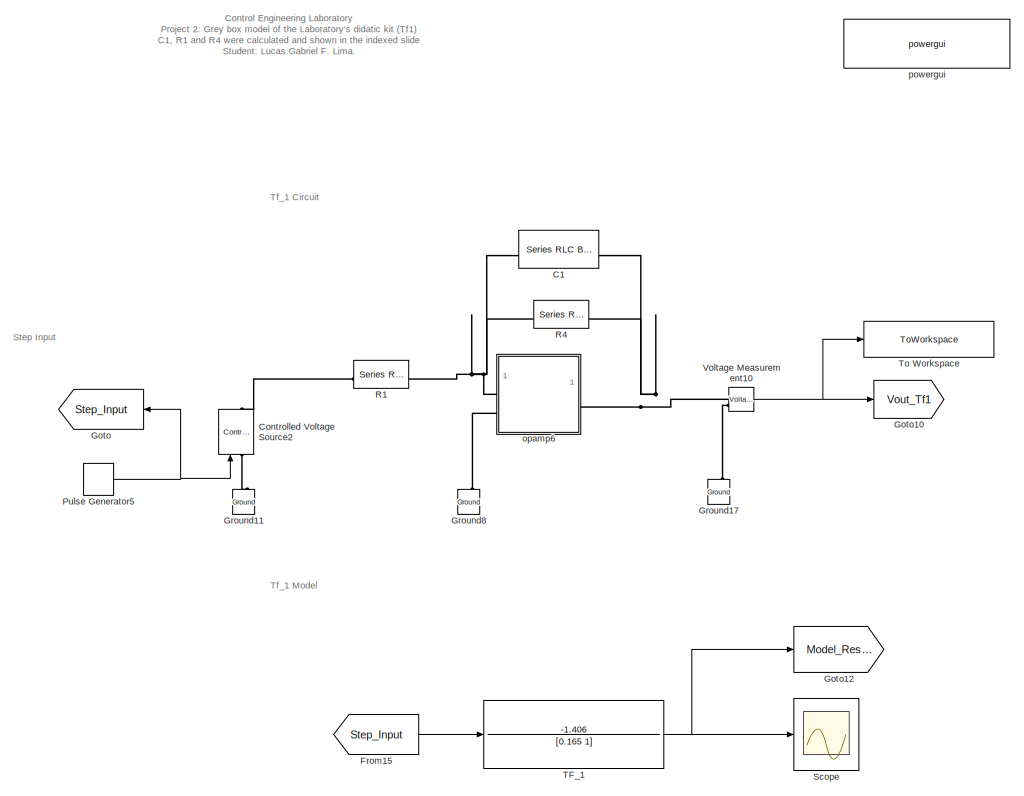
[diagram: root canvas - part 1/2, left side, full height]
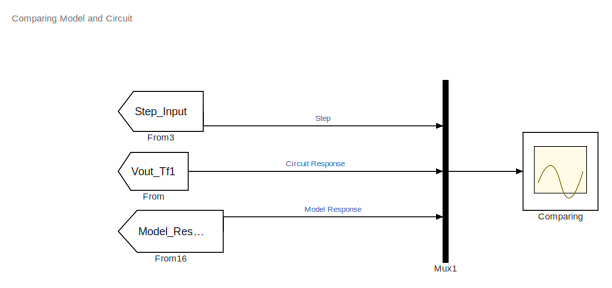
[diagram: root canvas - part 2/2, middle right region]
MODEL slx_54eb95ef9f8f
KIND model
CONFIG AbsTol = auto
CONFIG EnableMultiTasking = off
CONFIG FixedStep = auto
CONFIG MaxStep = auto
CONFIG MinStep = auto
CONFIG RelTol = 1e-3
CONFIG SampleTimeConstraint = Unconstrained
CONFIG SolverName = VariableStepAuto
CONFIG StartTime = 0.0
CONFIG StopTime = 1.5
BLOCK [Reference] C1  REF=spsSeriesRLCBranchLib/Series RLC Branch
  LibrarySourceBlock = sps_lib/Passives/Series RLC Branch
  SourceBlock = spsSeriesRLCBranchLib/Series RLC Branch
  SourceType = Series RLC Branch
BLOCK [Scope] Comparing
  Floating = off
  NumInputPorts = 1
  ScopeSpecificationString = Simulink.scopes.TimeScopeBlockCfg('CurrentConfiguration', extmgr.ConfigurationSet(extmgr.Configuration('Core','General UI',true),extmgr.Configuration('Core','Source UI',true),extmgr.Configuration('Sources','WiredSimulink',true,'DataLoggingVariableName','ScopeData1'),extmgr.Configuration('Visuals','Time Domain',true,'SerializedDisplays',{struct('MinYLimReal','-1.70657','MaxYLimReal','1.30073','YLab...<+1875ch>
BLOCK [Reference] Controlled Voltage Source2  REF=spsControlledVoltageSourceLib/Controlled Voltage Source
  LibrarySourceBlock = sps_lib/Sources/Controlled Voltage Source
  SourceBlock = spsControlledVoltageSourceLib/Controlled Voltage Source
  SourceType = Controlled Voltage Source
BLOCK [From] From
  GotoTag = Vout_Tf1
BLOCK [From] From15
  GotoTag = Step_Input
BLOCK [From] From16
  GotoTag = Model_Response
BLOCK [From] From3
  GotoTag = Step_Input
BLOCK [Goto] Goto
  GotoTag = Step_Input
  NameLocation = top
BLOCK [Goto] Goto10
  GotoTag = Vout_Tf1
BLOCK [Goto] Goto12
  GotoTag = Model_Response
BLOCK [Reference] Ground11  REF=spsGroundLib/Ground
  LibrarySourceBlock = sps_lib/Utilities/Ground
  NameLocation = right
  SourceBlock = spsGroundLib/Ground
  SourceType = Ground
BLOCK [Reference] Ground17  REF=spsGroundLib/Ground
  LibrarySourceBlock = sps_lib/Utilities/Ground
  NameLocation = right
  SourceBlock = spsGroundLib/Ground
  SourceType = Ground
BLOCK [Reference] Ground8  REF=spsGroundLib/Ground
  LibrarySourceBlock = sps_lib/Utilities/Ground
  NameLocation = right
  SourceBlock = spsGroundLib/Ground
  SourceType = Ground
BLOCK [Mux] Mux1
  DisplayOption = bar
  Inputs = 3
BLOCK [DiscretePulseGenerator] Pulse Generator5
  Period = 3
  PulseType = Time based
  PulseWidth = 50
BLOCK [Reference] R1  REF=spsSeriesRLCBranchLib/Series RLC Branch
  LibrarySourceBlock = sps_lib/Passives/Series RLC Branch
  SourceBlock = spsSeriesRLCBranchLib/Series RLC Branch
  SourceType = Series RLC Branch
BLOCK [Reference] R4  REF=spsSeriesRLCBranchLib/Series RLC Branch
  LibrarySourceBlock = sps_lib/Passives/Series RLC Branch
  SourceBlock = spsSeriesRLCBranchLib/Series RLC Branch
  SourceType = Series RLC Branch
BLOCK [Scope] Scope
  Floating = off
  NumInputPorts = 1
  ScopeSpecificationString = Simulink.scopes.TimeScopeBlockCfg('CurrentConfiguration', extmgr.ConfigurationSet(extmgr.Configuration('Core','General UI',true),extmgr.Configuration('Core','Source UI',true),extmgr.Configuration('Sources','WiredSimulink',true),extmgr.Configuration('Visuals','Time Domain',true,'SerializedDisplays',{struct('MinYLimReal','-0.15742','MaxYLimReal','1.41675','YLabelReal','','MinYLimMag','0.00000','MaxY...<+1644ch>
BLOCK [TransferFcn] TF_1
  Denominator = [0.165 1]
  Numerator = -1.406
BLOCK [ToWorkspace] To Workspace
  FixptAsFi = on
  MaxDataPoints = inf
  SampleTime = -1
  SaveFormat = Structure With Time
  VariableName = StepResponse
BLOCK [Reference] Voltage Measurement10  REF=spsVoltageMeasurementLib/Voltage Measurement
  LibrarySourceBlock = sps_lib/Sensors and Measurements/Voltage Measurement
  NameLocation = top
  SourceBlock = spsVoltageMeasurementLib/Voltage Measurement
  SourceType = Voltage Measurement
  UserDataPersistent = on
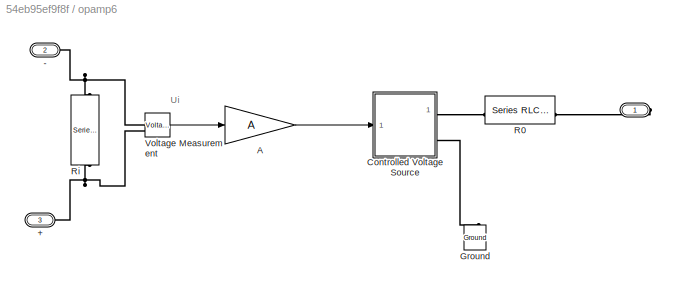
BLOCK [SubSystem] opamp6
BLOCK [PMIOPort] opamp6/ 
  Side = Right
BLOCK [PMIOPort] opamp6/+
  NameLocation = top
  Port = 3
  Side = Left
BLOCK [PMIOPort] opamp6/-
  NameLocation = top
  Port = 2
  Side = Left
BLOCK [Gain] opamp6/A
  Gain = A
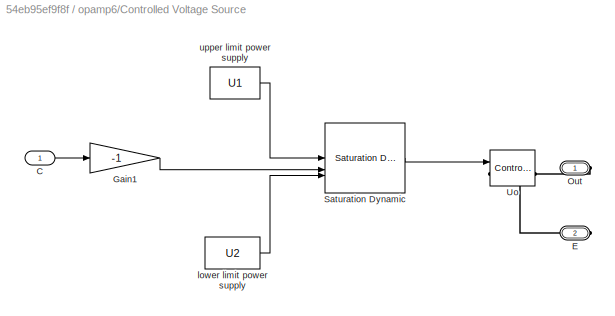
BLOCK [SubSystem] opamp6/Controlled Voltage Source
BLOCK [Inport] opamp6/Controlled Voltage Source/C
BLOCK [PMIOPort] opamp6/Controlled Voltage Source/E
  Port = 2
  Side = Right
BLOCK [Gain] opamp6/Controlled Voltage Source/Gain1
  Gain = -1
BLOCK [PMIOPort] opamp6/Controlled Voltage Source/Out
  Side = Right
BLOCK [Reference] opamp6/Controlled Voltage Source/Saturation Dynamic  REF=simulink/Discontinuities/Saturation
Dynamic
  SourceBlock = simulink/Discontinuities/Saturation\nDynamic
  SourceType = Saturation Dynamic
BLOCK [Reference] opamp6/Controlled Voltage Source/Uo  REF=spsControlledVoltageSourceLib/Controlled Voltage Source
  LibrarySourceBlock = sps_lib/Sources/Controlled Voltage Source
  SourceBlock = spsControlledVoltageSourceLib/Controlled Voltage Source
  SourceType = Controlled Voltage Source
BLOCK [Constant] opamp6/Controlled Voltage Source/lower limit power supply
  Value = U2
BLOCK [Constant] opamp6/Controlled Voltage Source/upper limit power supply
  NameLocation = top
  Value = U1
BLOCK [Reference] opamp6/Ground  REF=spsGroundLib/Ground
  LibrarySourceBlock = sps_lib/Utilities/Ground
  NameLocation = right
  SourceBlock = spsGroundLib/Ground
  SourceType = Ground
BLOCK [Reference] opamp6/R0  REF=spsSeriesRLCBranchLib/Series RLC Branch
  LibrarySourceBlock = sps_lib/Passives/Series RLC Branch
  NameLocation = top
  SourceBlock = spsSeriesRLCBranchLib/Series RLC Branch
  SourceType = Series RLC Branch
BLOCK [Reference] opamp6/Ri  REF=spsSeriesRLCBranchLib/Series RLC Branch
  LibrarySourceBlock = sps_lib/Passives/Series RLC Branch
  NameLocation = left
  SourceBlock = spsSeriesRLCBranchLib/Series RLC Branch
  SourceType = Series RLC Branch
BLOCK [Reference] opamp6/Voltage Measurement  REF=spsVoltageMeasurementLib/Voltage Measurement
  LibrarySourceBlock = sps_lib/Sensors and Measurements/Voltage Measurement
  SourceBlock = spsVoltageMeasurementLib/Voltage Measurement
  SourceType = Voltage Measurement
BLOCK [Reference] powergui  REF=spspowerguiLib/powergui
  LibrarySourceBlock = sps_lib/powergui
  Priority = 1
  SourceBlock = spspowerguiLib/powergui
  SourceType = PSB option menu block
ANNOTATION (root): Control Engineering Laboratory Project 2: Grey box model of the Laboratory's didatic kit (Tf1) C1, R1 and R4 were calculated and shown in the indexed slide Student: Lucas Gabriel F. Lima.
ANNOTATION (root): Comparing Model and Circuit
ANNOTATION (root): Step Input
ANNOTATION (root): Tf_1 Circuit
ANNOTATION (root): Tf_1 Model
ANNOTATION opamp6: Ui
LINE From15:1 -> TF_1:1
LINE From16:1 -> Mux1:3
LINE From3:1 -> Mux1:1
LINE From:1 -> Mux1:2
LINE Mux1:1 -> Comparing:1
NET Pulse Generator5:1 -> Controlled Voltage Source2:1, Goto:1
NET TF_1:1 -> Goto12:1, Scope:1
NET Voltage Measurement10:1 -> Goto10:1, To Workspace:1
LINE opamp6/A:1 -> opamp6/Controlled Voltage Source:1
LINE opamp6/Controlled Voltage Source/C:1 -> opamp6/Controlled Voltage Source/Gain1:1
LINE opamp6/Controlled Voltage Source/Gain1:1 -> opamp6/Controlled Voltage Source/Saturation Dynamic:2
LINE opamp6/Controlled Voltage Source/Saturation Dynamic:1 -> opamp6/Controlled Voltage Source/Uo:1
LINE opamp6/Controlled Voltage Source/lower limit power supply:1 -> opamp6/Controlled Voltage Source/Saturation Dynamic:3
LINE opamp6/Controlled Voltage Source/upper limit power supply:1 -> opamp6/Controlled Voltage Source/Saturation Dynamic:1
LINE opamp6/Voltage Measurement:1 -> opamp6/A:1
PNET net1: C1:LConn1 -- R1:RConn1 -- R4:LConn1 -- opamp6:LConn1
PNET net2: C1:RConn1 -- R4:RConn1 -- Voltage Measurement10:LConn1 -- opamp6:RConn1
PLINE Controlled Voltage Source2:LConn1 -- Ground11:LConn1
PLINE Controlled Voltage Source2:RConn1 -- R1:LConn1
PLINE Ground17:LConn1 -- Voltage Measurement10:LConn2
PLINE Ground8:LConn1 -- opamp6:LConn2
PLINE opamp6/ :RConn1 -- opamp6/R0:LConn1
PNET net3: opamp6/+:RConn1 -- opamp6/Ri:RConn1 -- opamp6/Voltage Measurement:LConn2
PNET net4: opamp6/-:RConn1 -- opamp6/Ri:LConn1 -- opamp6/Voltage Measurement:LConn1
PLINE opamp6/Controlled Voltage Source/E:RConn1 -- opamp6/Controlled Voltage Source/Uo:LConn1
PLINE opamp6/Controlled Voltage Source/Out:RConn1 -- opamp6/Controlled Voltage Source/Uo:RConn1
PLINE opamp6/Controlled Voltage Source:RConn1 -- opamp6/R0:RConn1
PLINE opamp6/Controlled Voltage Source:RConn2 -- opamp6/Ground:LConn1
note: NET lines group one-source signal fan-out (src -> all destinations, sorted); 1:1 wires keep LINE; PNET lines group multi-terminal physical nets as a canonical sorted terminal list (undirected conserving connections); 2-terminal nets keep the pairwise PLINE form
